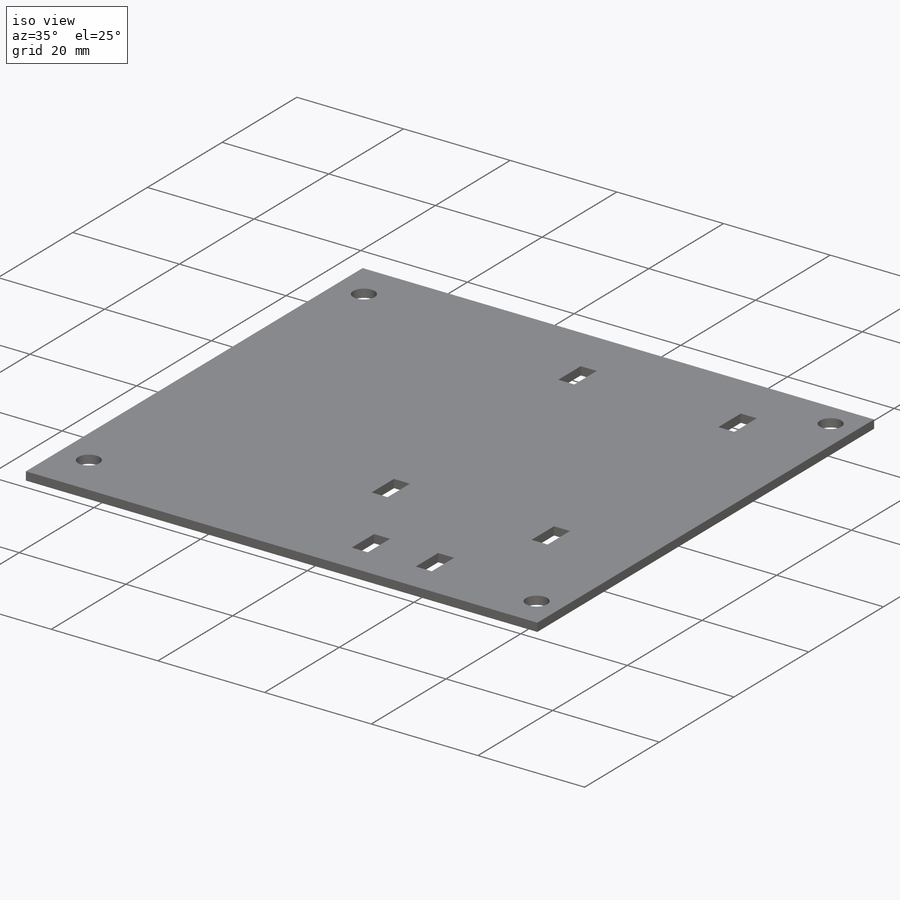
[diagram: iso view]
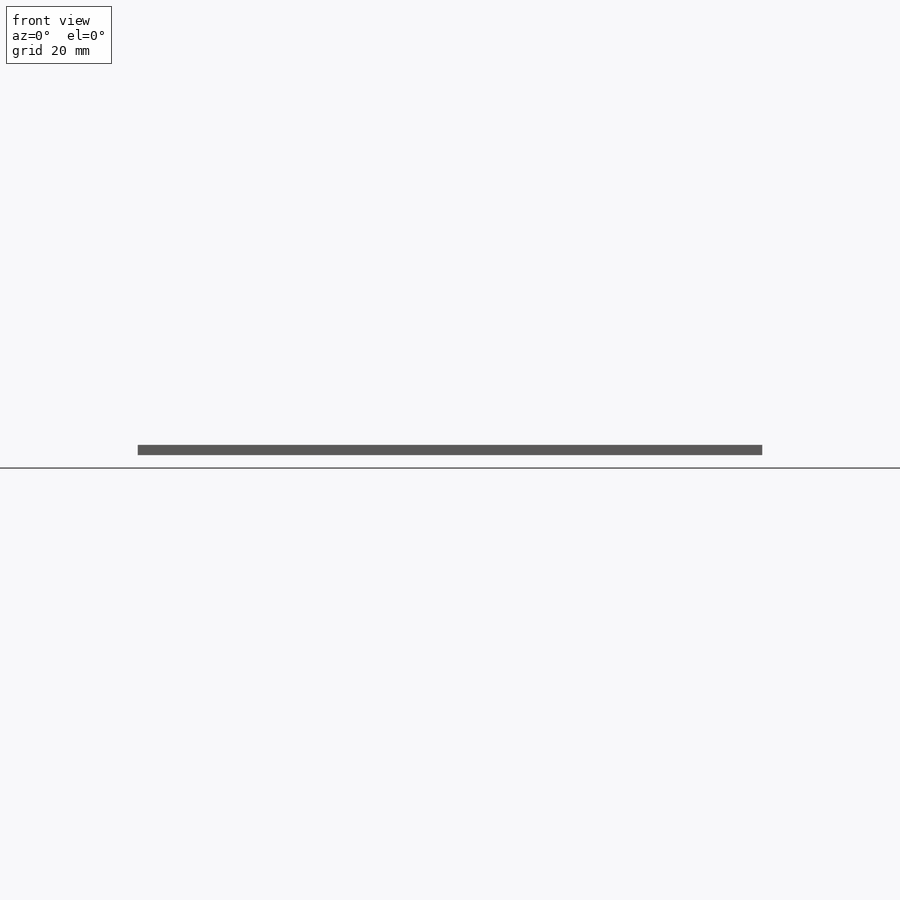
[diagram: front view]
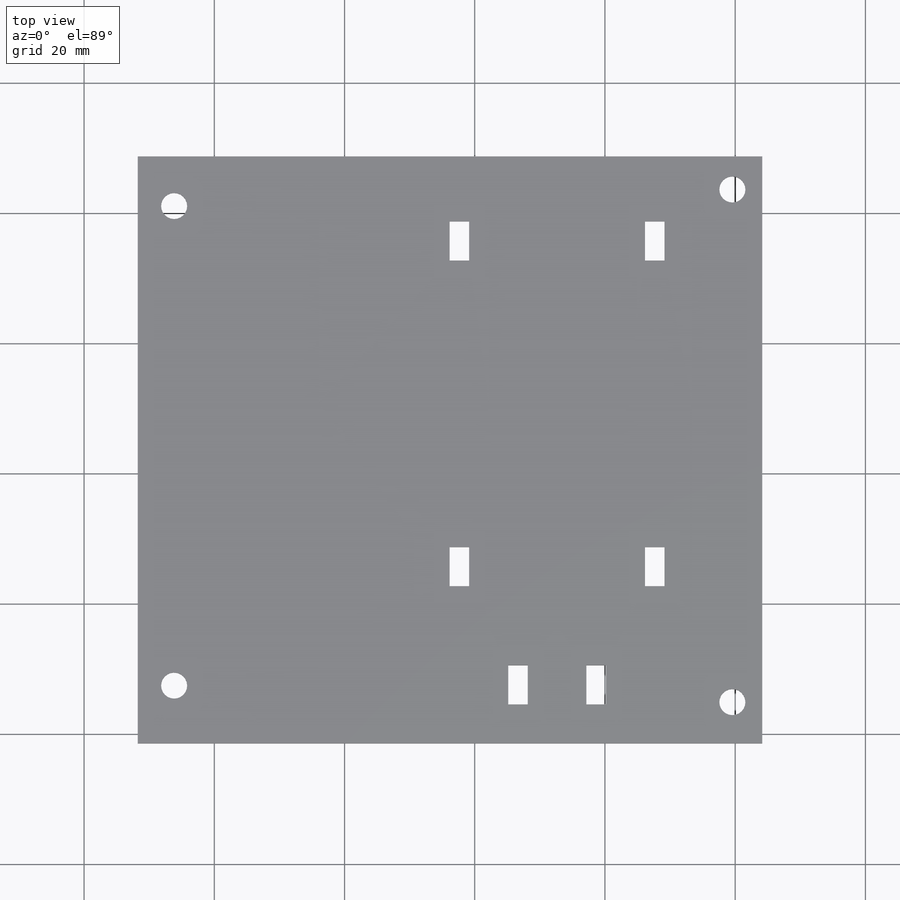
[diagram: top view]
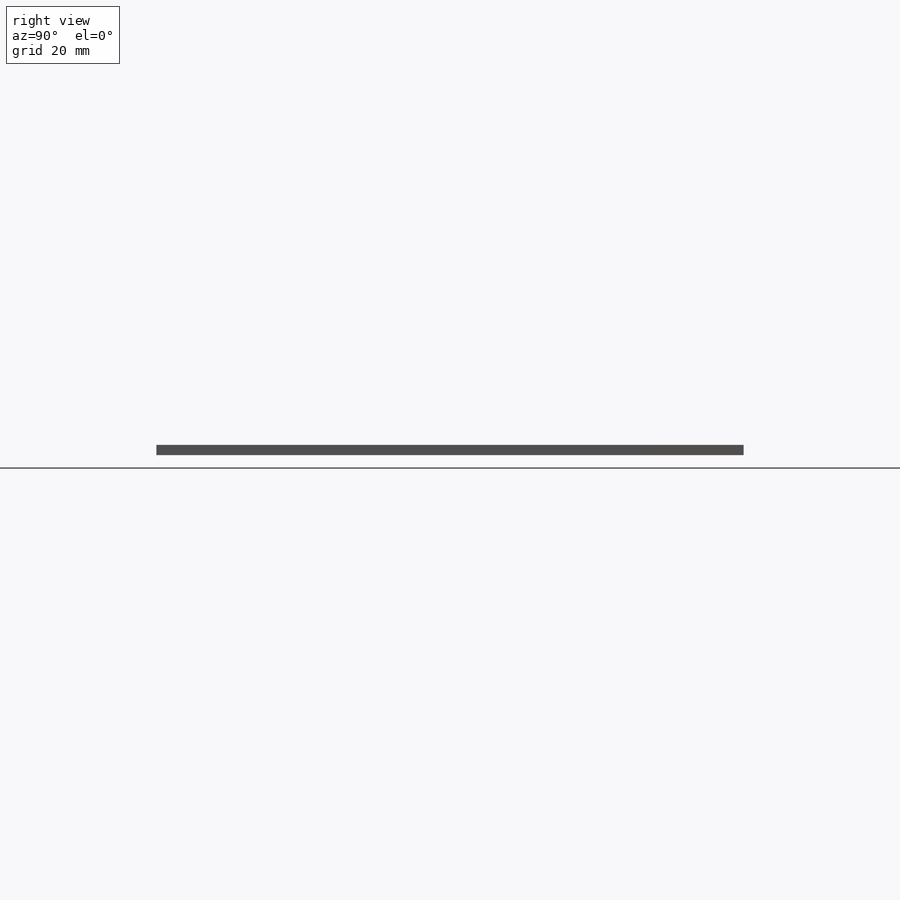
[diagram: right view]
SOLIDWORKS PART (.sldprt)
format: sldprt  version: not decoded by parser v0  size: 254,976 bytes
history: native  units: mm
features: sketch x4, cut_extrude x3, material x1, extrude x1 (+15 scaffold rows collapsed)
feature tree (24):
  scaffold x15  (default folders/planes/origin — collapsed)
  material  "ABS"
  sketch  "Sketch1"  dims[D1=96.89mm D2=90.17mm]
  extrude  "PCB"  Depth=1.57mm
  sketch  "Sketch2"  dims[D3=4.0mm D6=4.0mm D11=4.0mm D12=4.0mm D1=5.08mm D2=6.35mm D4=90.81mm D5=8.89mm D7=90.81mm D8=5.08mm D9=85.09mm D10=82.55mm]
  cut_extrude  "M3 Mounting Holes"  Depth=1.57mm
  sketch  "Sketch5"  dims[D1=0.5mm D2=0.5mm]
  cut_extrude  "Cut-Extrude1"  [1 undecoded]
  sketch  "Sketch6"  dims[c1.D1=3.0mm c1.D2=6.0mm c1.D3=6.0mm c1.D4=3.0mm c1.D5=10.0mm c1.D6=6.0mm c2.D6=90.0deg c2.D5=20.0mm c3.D6=20.0mm c3.D7=27.0mm c3.D8=15.0mm c3.D9=6.0mm c3.D10=6.0mm c3.D11=3.0mm c3.D12=3.0mm c3.D13=15.0mm c3.D14=27.0mm c3.D15=40.0mm c3.D16=40.0mm c3.D17=3.0mm c3.D18=6.0mm c3.D19=6.0mm c3.D20=3.0mm c3.D21=6.0mm c3.D22=6.0mm c3.D23=6.0mm c3.D24=6.0mm]
  cut_extrude  "ZipTie Holds"  Depth=10mm
decode coverage: 7 of 8 modeling features carry decoded parameters
note: 1 parameter value undecoded
note: suppression state not decoded; provenance and decode notes live in map.json
